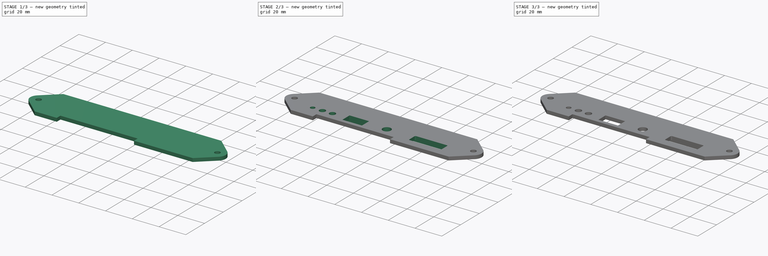
[diagram: build sequence overview — one tinted view per stage of 3, left to right]
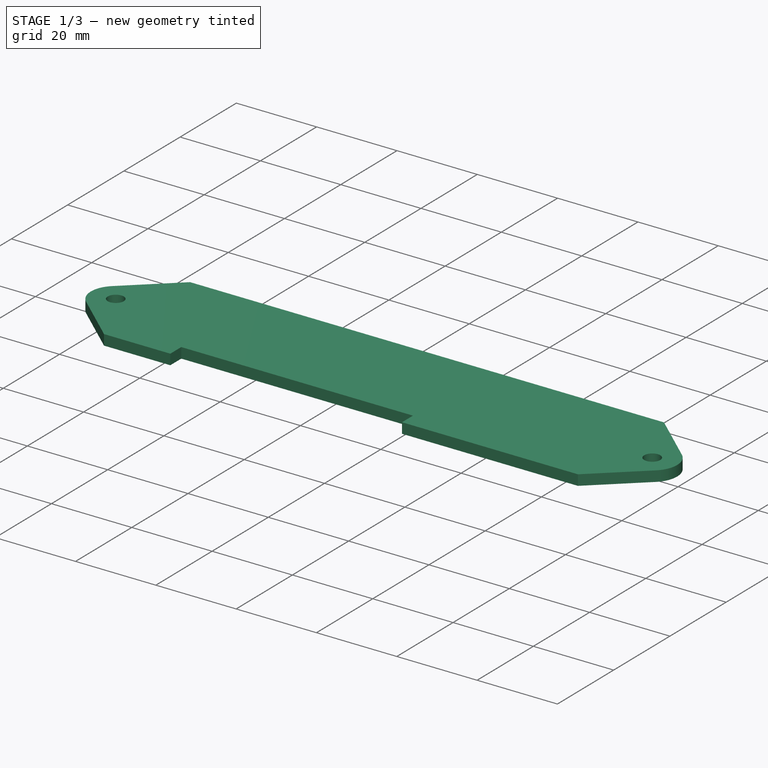
[diagram: stage 1 of 3 — iso view after this stage's code; geometry added in this stage tinted green]
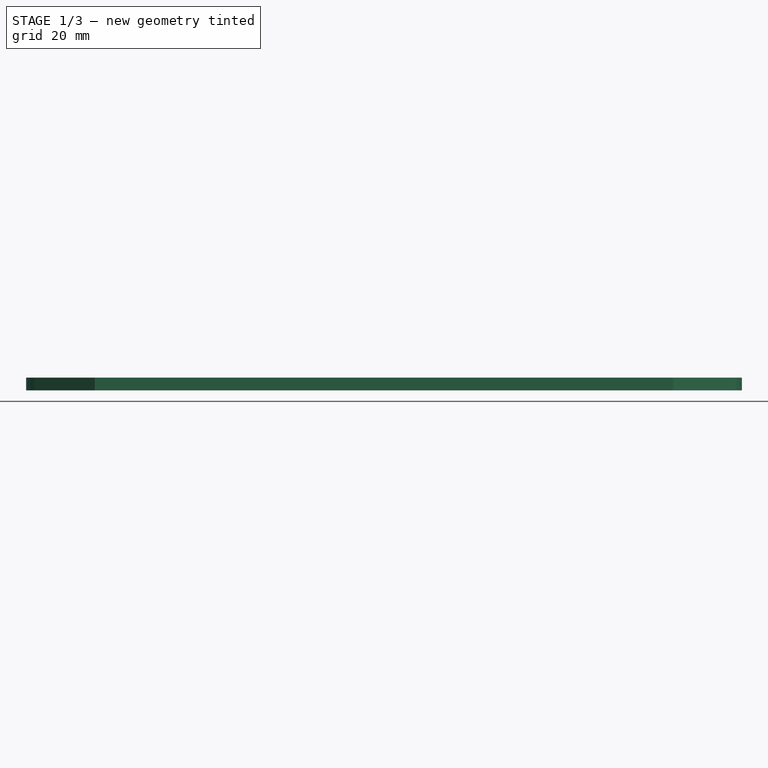
[diagram: stage 1 of 3 — front view after this stage's code; geometry added in this stage tinted green]
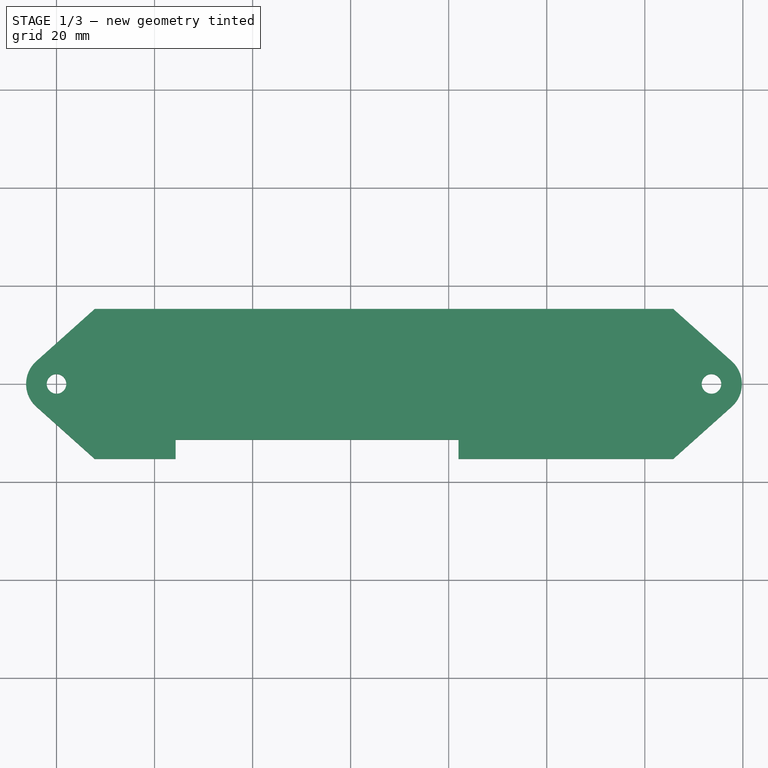
[diagram: stage 1 of 3 — top view after this stage's code; geometry added in this stage tinted green]
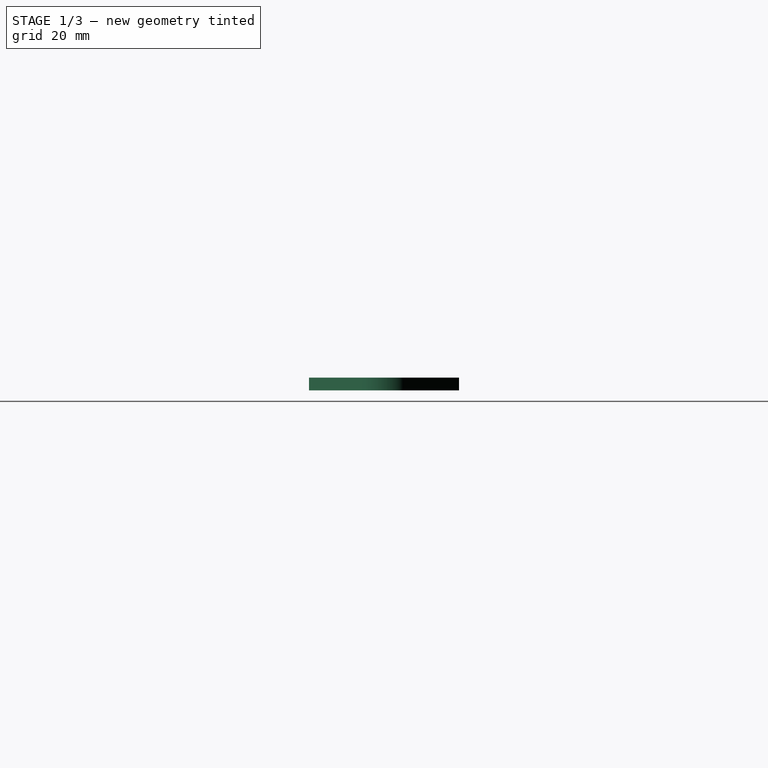
[diagram: stage 1 of 3 — right view after this stage's code; geometry added in this stage tinted green]
FCSTD DOCUMENT  (FreeCAD 0.20R29603 (Git))
Label: gotek-face
License: All rights reserved
LicenseURL: http://en.wikipedia.org/wiki/All_rights_reserved
objects: Sketcher::SketchObject×7, PartDesign::Pocket×5, PartDesign::Pad×2, PartDesign::Body×1
note: 22 computed .brp shape members not serialized (recipe doc carries the construction recipe); baked Part::Feature solids carry a one-line shape summary decoded from their .brp

FEATURE [Sketcher::SketchObject] Sketch
  FullyConstrained = true
  MapMode = 5
  Support = -> [XY_Plane]
  sketch-geometry (12):
    g0: ArcOfCircle CenterX=0 CenterY=0 CenterZ=0 NormalX=0 NormalY=0 NormalZ=1 AngleXU=0 Radius=6.2 StartAngle=2.30077 EndAngle=3.98241
    g1: ArcOfCircle CenterX=133.6 CenterY=0 CenterZ=0 NormalX=0 NormalY=0 NormalZ=1 AngleXU=0 Radius=6.2 StartAngle=5.44236 EndAngle=7.12401
    g2: LineSegment StartX=-4.13447 StartY=4.62019 StartZ=0 EndX=7.8 EndY=15.3 EndZ=0
    g3: LineSegment StartX=7.8 StartY=15.3 StartZ=0 EndX=125.8 EndY=15.3 EndZ=0
    g4: LineSegment StartX=125.8 StartY=15.3 StartZ=0 EndX=137.734 EndY=4.62019 EndZ=0
    g5: LineSegment StartX=-4.13447 StartY=-4.62019 StartZ=0 EndX=7.8 EndY=-15.3 EndZ=0
    g6: LineSegment StartX=7.8 StartY=-15.3 StartZ=0 EndX=125.8 EndY=-15.3 EndZ=0
    g7: LineSegment StartX=125.8 StartY=-15.3 StartZ=0 EndX=137.734 EndY=-4.62019 EndZ=0
    g8: GeomPoint X=-6.2 Y=0 Z=0
    g9: GeomPoint X=139.8 Y=0 Z=0
    g10: Circle CenterX=0 CenterY=0 CenterZ=0 NormalX=0 NormalY=0 NormalZ=1 AngleXU=0 Radius=2
    g11: Circle CenterX=133.6 CenterY=0 CenterZ=0 NormalX=0 NormalY=0 NormalZ=1 AngleXU=0 Radius=2
  constraints (29):
    c: Coincident(g0,g-1)
    c: PointOnObject(g1,g-1)
    c: Coincident(g3,g2)
    c: Horizontal(g3)
    c: Coincident(g4,g3)
    c: Coincident(g6,g5)
    c: Horizontal(g6)
    c: Coincident(g7,g6)
    c: Equal(g0,g1)
    c: Tangent(g1,g7) = -1.5708
    c: Tangent(g0,g2) = 1.5708
    c: Tangent(g0,g5) = -1.5708
    c: Tangent(g1,g4) = 1.5708
    c: Equal(g4,g7)
    c: Equal(g7,g5)
    c: Equal(g5,g2)
    c: Equal(g3,g6)
    c: PointOnObject(g8,g-1)
    c: PointOnObject(g9,g-1)
    c: PointOnObject(g9,g1)
    c: PointOnObject(g8,g0)
    c: Radius(g0) = 6.2
    c: DistanceY(g5,g2) = 30.6
    c: DistanceX(g8,g9) = 146
    c: DistanceX(g3,g3) = 118
    c: Coincident(g10,g0)
    c: Coincident(g11,g1)
    c: Equal(g11,g10)
    c: Radius(g11) = 2
FEATURE [PartDesign::Pad] Pad
  Direction = (0,0,1)
  Length = 2.6
  Length2 = 10
  Profile = -> Sketch
  ReferenceAxis = -> Sketch [N_Axis]
  Type = 0
FEATURE [Sketcher::SketchObject] Sketch001
  ExternalGeometry = -> [Pad]
  FullyConstrained = true
  MapMode = 5
  Placement = pos=(0,0,2.6) rot=(0,0,1;0rad)
  Support = -> [Pad]
  sketch-geometry (6):
    g0: GeomPoint X=-6.2 Y=0 Z=0
    g1: LineSegment StartX=24.3 StartY=-15.3 StartZ=0 EndX=82 EndY=-15.3 EndZ=0
    g2: LineSegment StartX=82 StartY=-15.3 StartZ=0 EndX=82 EndY=-11.4 EndZ=0
    g3: LineSegment StartX=82 StartY=-11.4 StartZ=0 EndX=24.3 EndY=-11.4 EndZ=0
    g4: LineSegment StartX=24.3 StartY=-11.4 StartZ=0 EndX=24.3 EndY=-15.3 EndZ=0
    g5: GeomPoint X=139.8 Y=0 Z=0
  constraints (16):
    c: PointOnObject(g0,g-1)
    c: PointOnObject(g0,g-3)
    c: Coincident(g1,g2)
    c: Coincident(g2,g3)
    c: Coincident(g3,g4)
    c: Coincident(g4,g1)
    c: Horizontal(g1)
    c: Horizontal(g3)
    c: Vertical(g2)
    c: Vertical(g4)
    c: PointOnObject(g1,g-4)
    c: DistanceX(g0,g3) = 30.5
    c: PointOnObject(g5,g-1)
    c: DistanceX(g2,g5) = 57.8
    c: PointOnObject(g5,g-5)
    c: DistanceY(g4,g4) = 3.9
FEATURE [PartDesign::Pocket] Pocket
  BaseFeature = -> Pad
  Direction = (0,0,-1)
  Length = 5
  Length2 = 5
  Profile = -> Sketch001
  ReferenceAxis = -> Sketch001 [N_Axis]
  Type = 0
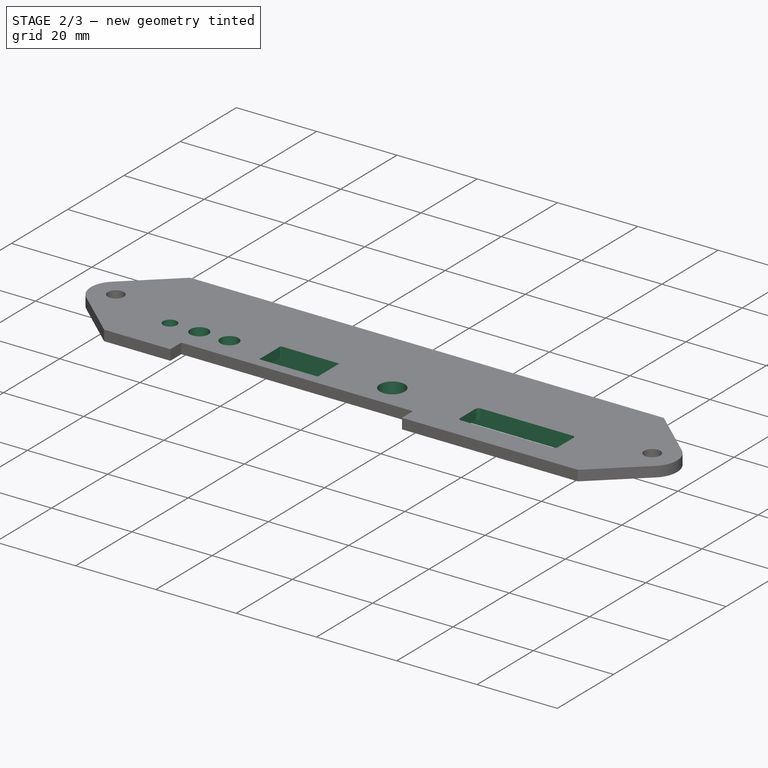
[diagram: stage 2 of 3 — iso view after this stage's code; geometry added in this stage tinted green]
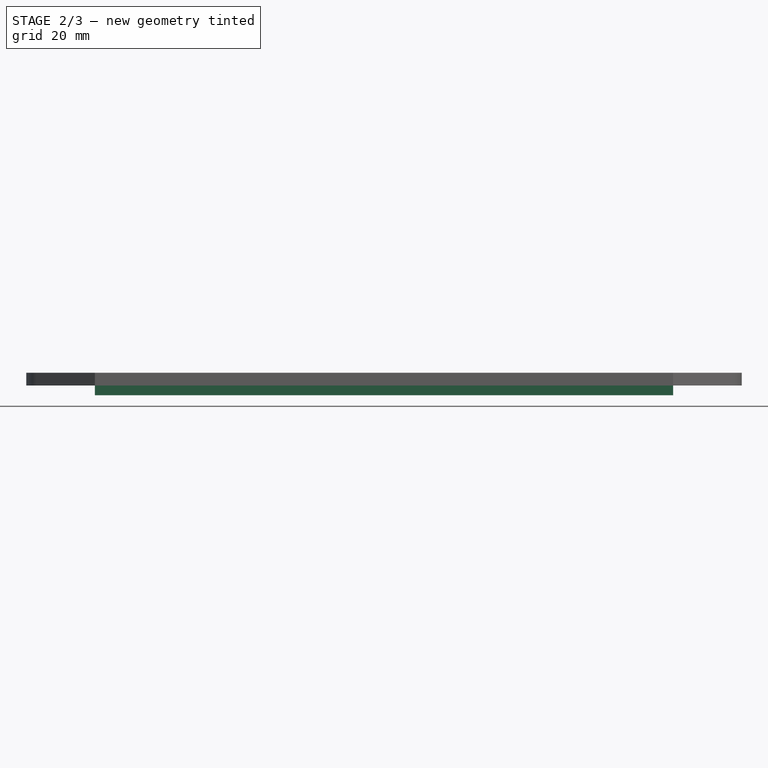
[diagram: stage 2 of 3 — front view after this stage's code; geometry added in this stage tinted green]
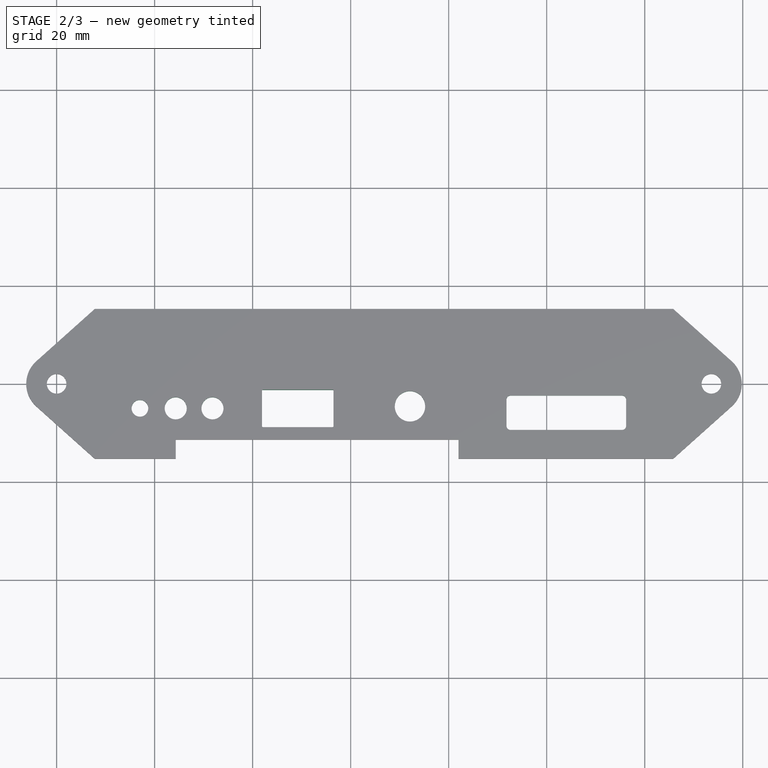
[diagram: stage 2 of 3 — top view after this stage's code; geometry added in this stage tinted green]
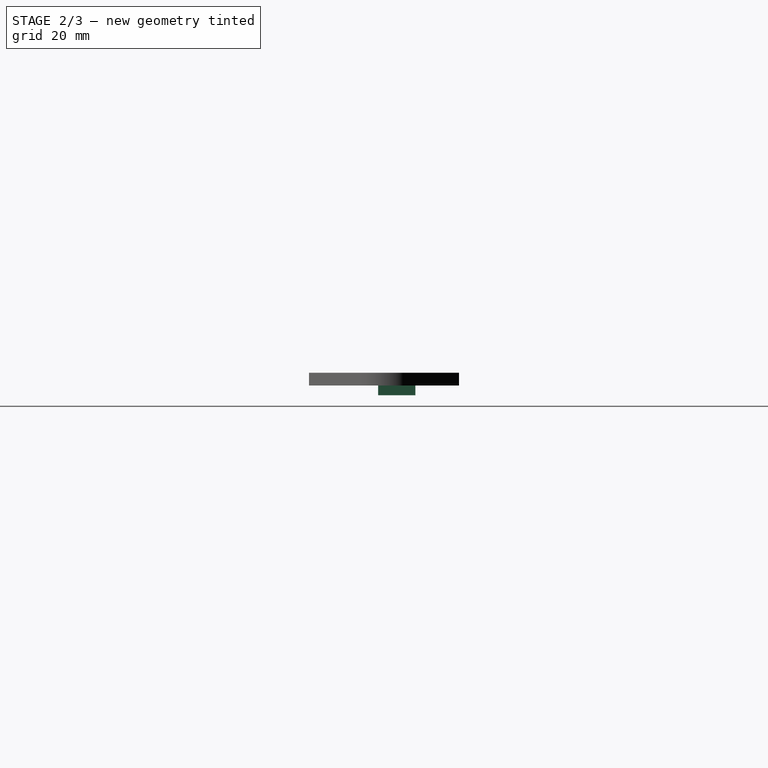
[diagram: stage 2 of 3 — right view after this stage's code; geometry added in this stage tinted green]
FEATURE [Sketcher::SketchObject] Sketch002
  ExternalGeometry = -> [Pocket]
  FullyConstrained = true
  MapMode = 5
  Placement = pos=(0,0,0) rot=(1,0,0;3.14159rad)
  Support = -> [Pocket]
  sketch-geometry (4):
    g0: LineSegment StartX=9 StartY=0 StartZ=0 EndX=124.6 EndY=0 EndZ=0
    g1: LineSegment StartX=124.6 StartY=0 StartZ=0 EndX=124.6 EndY=-5.2 EndZ=0
    g2: LineSegment StartX=124.6 StartY=-5.2 StartZ=0 EndX=9 EndY=-5.2 EndZ=0
    g3: LineSegment StartX=9 StartY=-5.2 StartZ=0 EndX=9 EndY=0 EndZ=0
  constraints (12):
    c: Coincident(g0,g1)
    c: Coincident(g1,g2)
    c: Coincident(g2,g3)
    c: Coincident(g3,g0)
    c: Horizontal(g0)
    c: Horizontal(g2)
    c: Vertical(g1)
    c: Vertical(g3)
    c: PointOnObject(g0,g-1)
    c: DistanceX(g0,g-3) = 9
    c: DistanceX(g-1,g0) = 9
    c: DistanceY(g3,g3) = 5.2
FEATURE [PartDesign::Pocket] Pocket001
  BaseFeature = -> Pocket
  Direction = (0,0,1)
  Length = 0.2
  Length2 = 5
  Profile = -> Sketch002
  ReferenceAxis = -> Sketch002 [N_Axis]
  Type = 0
FEATURE [Sketcher::SketchObject] Sketch003
  ExternalGeometry = -> [Pocket001]
  FullyConstrained = true
  MapMode = 5
  Placement = pos=(0,0,0) rot=(1,0,0;3.14159rad)
  Support = -> [Pocket001]
  sketch-geometry (10):
    g0: LineSegment StartX=9 StartY=0 StartZ=0 EndX=124.6 EndY=0 EndZ=0
    g1: LineSegment StartX=124.6 StartY=0 StartZ=0 EndX=124.6 EndY=-5.2 EndZ=0
    g2: LineSegment StartX=124.6 StartY=-5.2 StartZ=0 EndX=9 EndY=-5.2 EndZ=0
    g3: LineSegment StartX=9 StartY=-5.2 StartZ=0 EndX=9 EndY=0 EndZ=0
    g4: LineSegment StartX=7.8 StartY=1.2 StartZ=0 EndX=125.8 EndY=1.2 EndZ=0
    g5: LineSegment StartX=125.8 StartY=1.2 StartZ=0 EndX=125.8 EndY=-6.4 EndZ=0
    g6: LineSegment StartX=125.8 StartY=-6.4 StartZ=0 EndX=7.8 EndY=-6.4 EndZ=0
    g7: LineSegment StartX=7.8 StartY=-6.4 StartZ=0 EndX=7.8 EndY=1.2 EndZ=0
    g8: Circle CenterX=9 CenterY=0 CenterZ=0 NormalX=0 NormalY=0 NormalZ=1 AngleXU=0 Radius=1.2
    g9: Circle CenterX=124.6 CenterY=-5.2 CenterZ=0 NormalX=0 NormalY=0 NormalZ=1 AngleXU=0 Radius=1.2
  constraints (26):
    c: Coincident(g0,g1)
    c: Coincident(g1,g2)
    c: Coincident(g2,g3)
    c: Coincident(g3,g0)
    c: Horizontal(g0)
    c: Horizontal(g2)
    c: Vertical(g1)
    c: Vertical(g3)
    c: Coincident(g0,g-3)
    c: Coincident(g1,g-4)
    c: Coincident(g4,g5)
    c: Coincident(g5,g6)
    c: Coincident(g6,g7)
    c: Coincident(g7,g4)
    c: Horizontal(g4)
    c: Horizontal(g6)
    c: Vertical(g5)
    c: Vertical(g7)
    c: Coincident(g8,g0)
    c: Tangent(g8,g4)
    c: Coincident(g9,g1)
    c: Tangent(g9,g6)
    c: Tangent(g9,g5)
    c: Tangent(g8,g7)
    c: Equal(g8,g9)
    c: DistanceY(g0,g4) = 1.2
FEATURE [PartDesign::Pad] Pad001
  BaseFeature = -> Pocket001
  Direction = (0,0,-1)
  Length = 2
  Length2 = 10
  Profile = -> Sketch003
  ReferenceAxis = -> Sketch003 [N_Axis]
  Type = 0
FEATURE [Sketcher::SketchObject] Sketch004
  ExternalGeometry = -> [Pad001]
  FullyConstrained = true
  MapMode = 5
  Placement = pos=(0,0,2.6) rot=(0,0,1;0rad)
  Support = -> [Pad001]
  sketch-geometry (25):
    g0: GeomPoint X=9.3 Y=0 Z=0
    g1: LineSegment StartX=17 StartY=-5 StartZ=0 EndX=31.8 EndY=-5 EndZ=0
    g2: Circle CenterX=24.3 CenterY=-5 CenterZ=0 NormalX=0 NormalY=0 NormalZ=1 AngleXU=0 Radius=2.25
    g3: Circle CenterX=31.8 CenterY=-5 CenterZ=0 NormalX=0 NormalY=0 NormalZ=1 AngleXU=0 Radius=2.25
    g4: Circle CenterX=17 CenterY=-5 CenterZ=0 NormalX=0 NormalY=0 NormalZ=1 AngleXU=0 Radius=1.7
    g5: LineSegment StartX=42.1 StartY=-1.2 StartZ=0 EndX=56.3 EndY=-1.2 EndZ=0
    g6: LineSegment StartX=56.5 StartY=-1.4 StartZ=0 EndX=56.5 EndY=-8.63 EndZ=0
    g7: LineSegment StartX=56.3 StartY=-8.83 StartZ=0 EndX=42.1 EndY=-8.83 EndZ=0
    g8: LineSegment StartX=41.9 StartY=-8.63 StartZ=0 EndX=41.9 EndY=-1.4 EndZ=0
    g9: ArcOfCircle CenterX=42.1 CenterY=-1.4 CenterZ=0 NormalX=0 NormalY=0 NormalZ=1 AngleXU=0 Radius=0.2 StartAngle=1.5708 EndAngle=3.14159
    g10: ArcOfCircle CenterX=42.1 CenterY=-8.63 CenterZ=0 NormalX=0 NormalY=0 NormalZ=1 AngleXU=0 Radius=0.2 StartAngle=3.14159 EndAngle=4.71239
    g11: ArcOfCircle CenterX=56.3 CenterY=-8.63 CenterZ=0 NormalX=0 NormalY=0 NormalZ=1 AngleXU=0 Radius=0.2 StartAngle=4.71239 EndAngle=6.28319
    g12: ArcOfCircle CenterX=56.3 CenterY=-1.4 CenterZ=0 NormalX=0 NormalY=0 NormalZ=1 AngleXU=0 Radius=0.2 StartAngle=0 EndAngle=1.5708
    g13: LineSegment StartX=92.6 StartY=-2.4 StartZ=0 EndX=115.4 EndY=-2.4 EndZ=0
    g14: LineSegment StartX=116.2 StartY=-3.2 StartZ=0 EndX=116.2 EndY=-8.6 EndZ=0
    g15: LineSegment StartX=115.4 StartY=-9.4 StartZ=0 EndX=92.6 EndY=-9.4 EndZ=0
    g16: LineSegment StartX=91.8 StartY=-8.6 StartZ=0 EndX=91.8 EndY=-3.2 EndZ=0
    g17: ArcOfCircle CenterX=92.6 CenterY=-3.2 CenterZ=0 NormalX=0 NormalY=0 NormalZ=1 AngleXU=0 Radius=0.8 StartAngle=1.5708 EndAngle=3.14159
    g18: ArcOfCircle CenterX=92.6 CenterY=-8.6 CenterZ=0 NormalX=0 NormalY=0 NormalZ=1 AngleXU=0 Radius=0.8 StartAngle=3.14159 EndAngle=4.71239
    g19: ArcOfCircle CenterX=115.4 CenterY=-3.2 CenterZ=0 NormalX=0 NormalY=0 NormalZ=1 AngleXU=0 Radius=0.8 StartAngle=0 EndAngle=1.5708
    g20: ArcOfCircle CenterX=115.4 CenterY=-8.6 CenterZ=0 NormalX=0 NormalY=0 NormalZ=1 AngleXU=0 Radius=0.8 StartAngle=4.71239 EndAngle=6.28319
    g21: LineSegment StartX=72.1 StartY=0 StartZ=0 EndX=72.1 EndY=-4.6 EndZ=0
    g22: Circle CenterX=72.1 CenterY=-4.6 CenterZ=0 NormalX=0 NormalY=0 NormalZ=1 AngleXU=0 Radius=3.1
    g23: LineSegment StartX=72.1 StartY=-4.6 StartZ=0 EndX=56.5 EndY=-4.6 EndZ=0
    g24: GeomPoint X=72.1 Y=-7.7 Z=0
  constraints (64):
    c: PointOnObject(g0,g-1)
    c: DistanceX(g-1,g0) = 9.3
    c: Horizontal(g1)
    c: PointOnObject(g2,g1)
    c: Coincident(g3,g1)
    c: Coincident(g4,g1)
    c: Equal(g2,g3)
    c: Radius(g3) = 2.25
    c: Radius(g4) = 1.7
    c: DistanceX(g0,g4) = 7.7
    c: DistanceY(g4,g0) = 5
    c: DistanceX(g0,g2) = 15
    c: DistanceX(g2,g3) = 7.5
    c: Horizontal(g5)
    c: Horizontal(g7)
    c: Vertical(g6)
    c: Vertical(g8)
    c: Tangent(g5,g9) = 1.5708
    c: Tangent(g8,g9) = 1.5708
    c: Tangent(g8,g10) = 1.5708
    c: Tangent(g7,g10) = 1.5708
    c: Tangent(g7,g11) = 1.5708
    c: Tangent(g6,g11) = 1.5708
    c: Tangent(g5,g12) = 1.5708
    c: Tangent(g6,g12) = 1.5708
    c: Equal(g9,g10)
    c: Equal(g10,g11)
    c: Equal(g11,g12)
    c: Radius(g12) = 0.2
    c: DistanceX(g0,g6) = 47.2
    c: DistanceX(g8,g6) = 14.6
    c: DistanceY(g5,g0) = 1.2
    c: Horizontal(g13)
    c: Horizontal(g15)
    c: Vertical(g14)
    c: Vertical(g16)
    c: Tangent(g16,g17) = 1.5708
    c: Tangent(g13,g17) = 1.5708
    c: Tangent(g16,g18) = 1.5708
    c: Tangent(g15,g18) = 1.5708
    c: Tangent(g13,g19) = 1.5708
    c: Tangent(g14,g19) = 1.5708
    c: Tangent(g15,g20) = 1.5708
    c: Tangent(g14,g20) = 1.5708
    c: Equal(g17,g18)
    c: Equal(g18,g20)
    c: Equal(g20,g19)
    c: Radius(g19) = 0.8
    c: DistanceY(g15,g13) = 7
    c: DistanceX(g16,g14) = 24.4
    c: DistanceX(g0,g16) = 82.5
    c: DistanceY(g13,g0) = 2.4
    c: PointOnObject(g21,g-1)
    c: Vertical(g21)
    c: Coincident(g22,g21)
    c: Radius(g22) = 3.1
    c: Coincident(g23,g22)
    c: PointOnObject(g23,g6)
    c: Horizontal(g23)
    c: PointOnObject(g24,g22)
    c: PointOnObject(g24,g21)
    c: DistanceY(g-3,g24) = 3.7
    c: DistanceY(g7,g5) = 7.63
    c: DistanceX(g23,g23) = 15.6
FEATURE [PartDesign::Pocket] Pocket002
  BaseFeature = -> Pad001
  Direction = (0,0,-1)
  Length = 5
  Length2 = 5
  Profile = -> Sketch004
  ReferenceAxis = -> Sketch004 [N_Axis]
  Type = 0
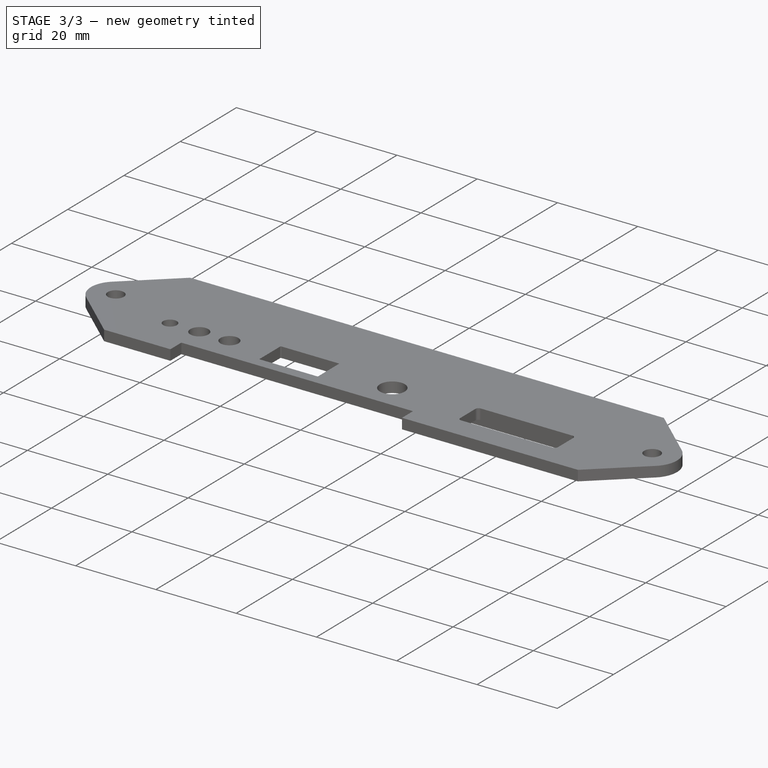
[diagram: stage 3 of 3 — iso view after this stage's code; geometry added in this stage tinted green]
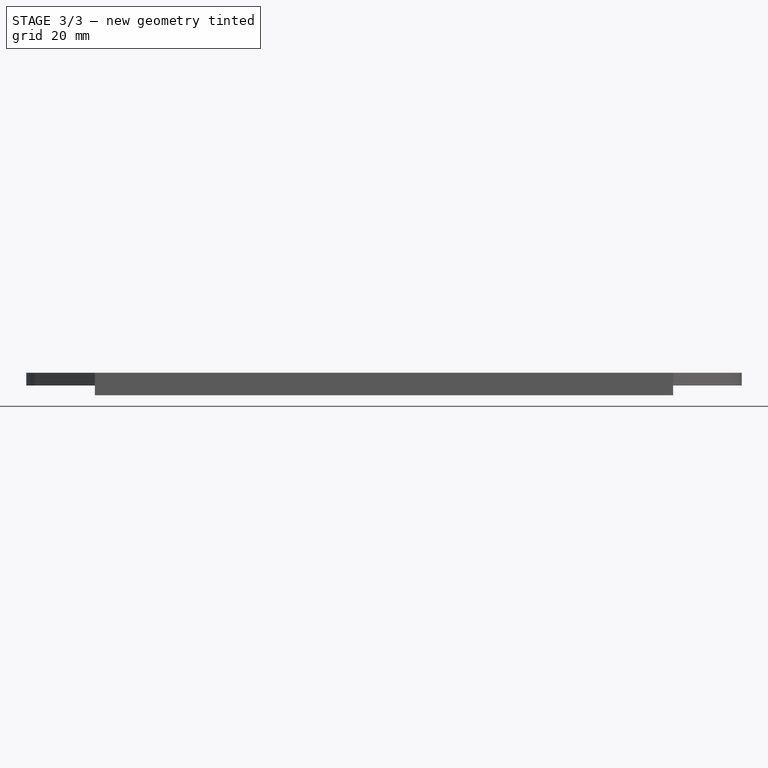
[diagram: stage 3 of 3 — front view after this stage's code; geometry added in this stage tinted green]
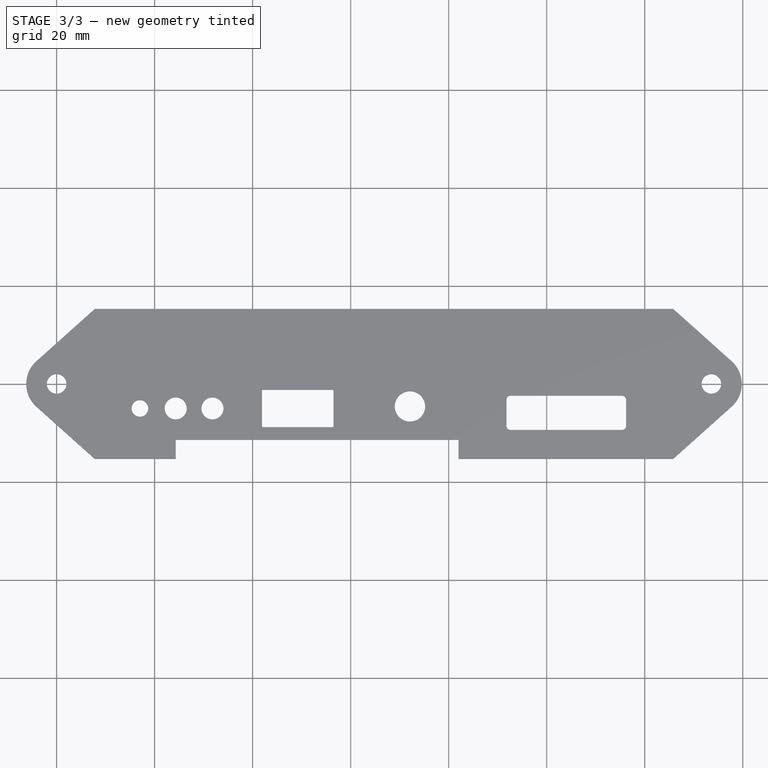
[diagram: stage 3 of 3 — top view after this stage's code; geometry added in this stage tinted green]
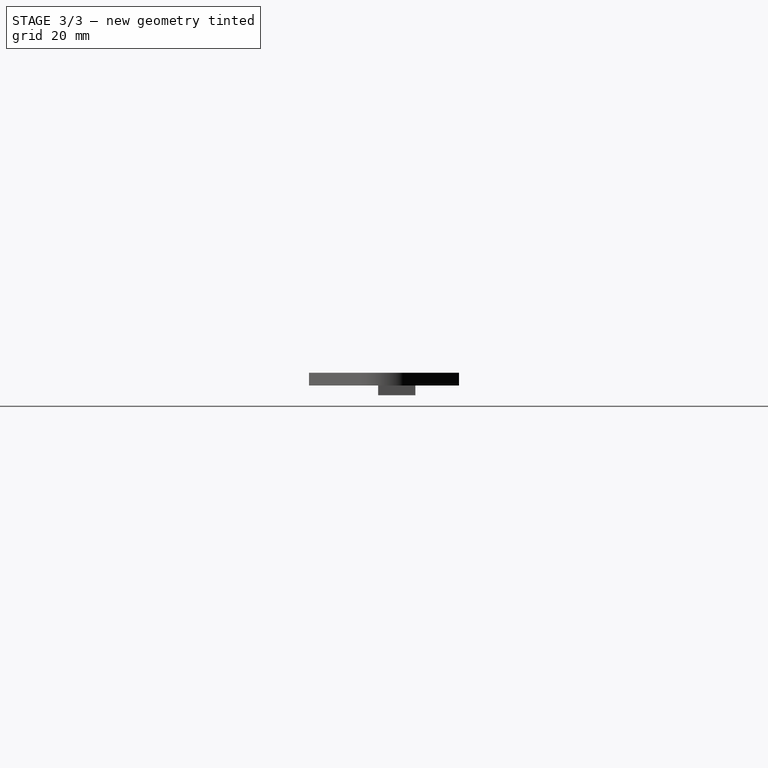
[diagram: stage 3 of 3 — right view after this stage's code; geometry added in this stage tinted green]
FEATURE [Sketcher::SketchObject] Sketch005
  ExternalGeometry = -> [Pocket002]
  FullyConstrained = true
  MapMode = 5
  Placement = pos=(0,0,-2) rot=(1,0,0;3.14159rad)
  Support = -> [Pocket002]
  sketch-geometry (4):
    g0: LineSegment StartX=16.8 StartY=1.2 StartZ=0 EndX=58.8 EndY=1.2 EndZ=0
    g1: LineSegment StartX=58.8 StartY=1.2 StartZ=0 EndX=58.8 EndY=0 EndZ=0
    g2: LineSegment StartX=58.8 StartY=0 StartZ=0 EndX=16.8 EndY=0 EndZ=0
    g3: LineSegment StartX=16.8 StartY=0 StartZ=0 EndX=16.8 EndY=1.2 EndZ=0
  constraints (12):
    c: Coincident(g0,g1)
    c: Coincident(g1,g2)
    c: Coincident(g2,g3)
    c: Coincident(g3,g0)
    c: Horizontal(g0)
    c: Horizontal(g2)
    c: Vertical(g1)
    c: Vertical(g3)
    c: PointOnObject(g0,g-4)
    c: PointOnObject(g1,g-1)
    c: DistanceX(g-4,g0) = 9
    c: DistanceX(g-4,g0) = 51
FEATURE [PartDesign::Pocket] Pocket003
  BaseFeature = -> Pocket002
  Direction = (0,0,1)
  Length = 2
  Length2 = 5
  Profile = -> Sketch005
  ReferenceAxis = -> Sketch005 [N_Axis]
  Type = 0
FEATURE [Sketcher::SketchObject] Sketch006
  ExternalGeometry = -> [Pocket003]
  FullyConstrained = true
  MapMode = 5
  Placement = pos=(0,0,-2) rot=(1,0,0;3.14159rad)
  Support = -> [Pocket003]
  sketch-geometry (5):
    g0: LineSegment StartX=64.6 StartY=-2.9 StartZ=0 EndX=64.6 EndY=12.1 EndZ=0
    g1: LineSegment StartX=64.6 StartY=12.1 StartZ=0 EndX=79.6 EndY=12.1 EndZ=0
    g2: LineSegment StartX=79.6 StartY=12.1 StartZ=0 EndX=79.6 EndY=-2.9 EndZ=0
    g3: LineSegment StartX=79.6 StartY=-2.9 StartZ=0 EndX=64.6 EndY=-2.9 EndZ=0
    g4: GeomPoint X=72.1 Y=4.6 Z=0
  constraints (12):
    c: Coincident(g0,g1)
    c: Coincident(g1,g2)
    c: Coincident(g2,g3)
    c: Coincident(g3,g0)
    c: Horizontal(g1)
    c: Horizontal(g3)
    c: Vertical(g0)
    c: Vertical(g2)
    c: Symmetric(g1,g0,g4)
    c: Coincident(g4,g-3)
    c: Equal(g2,g1)
    c: DistanceY(g0,g0) = 15
FEATURE [PartDesign::Pocket] Pocket004
  BaseFeature = -> Pocket003
  Direction = (0,0,1)
  Length = 0
  Length2 = 5
  Profile = -> Sketch006
  ReferenceAxis = -> Sketch006 [N_Axis]
  Type = 3
  UpToFace = -> Pocket003 [Face4]
FEATURE [PartDesign::Body] Body
  Group = -> [Sketch,Pad,Sketch001,Pocket,Sketch002,Pocket001,Sketch003,Pad001,Sketch004,Pocket002,Sketch005,Pocket003,Sketch006,Pocket004]
  Origin = -> Origin
  Tip = -> Pocket004
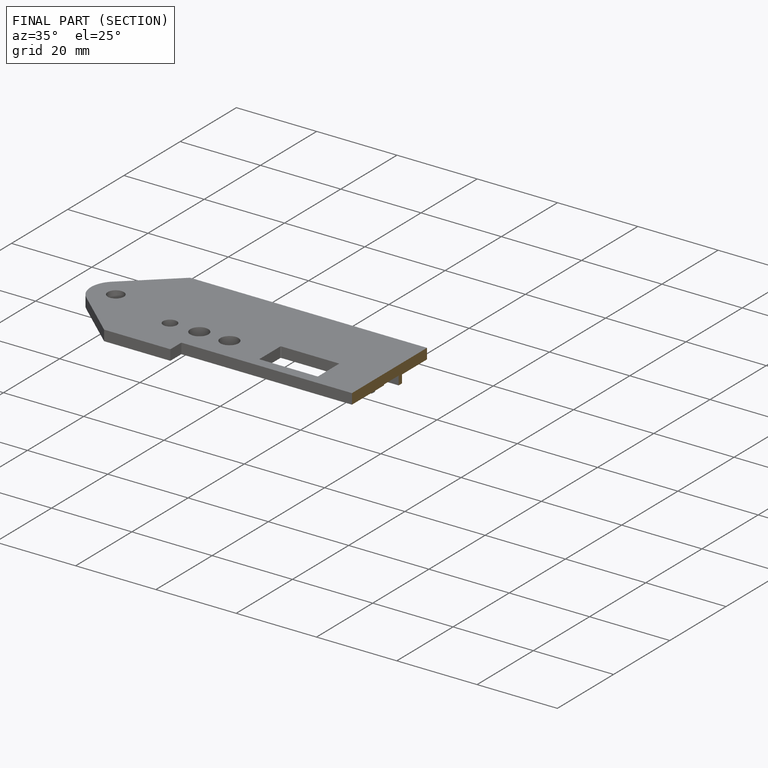
[diagram: finished part — half-section view (interior)]
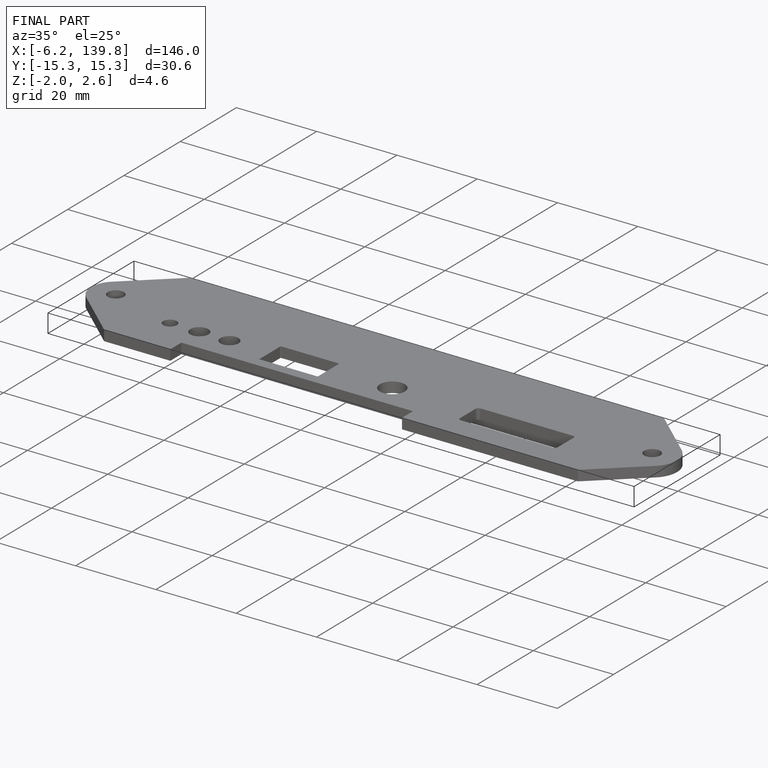
[diagram: finished part — iso view with bounding-box wireframe]
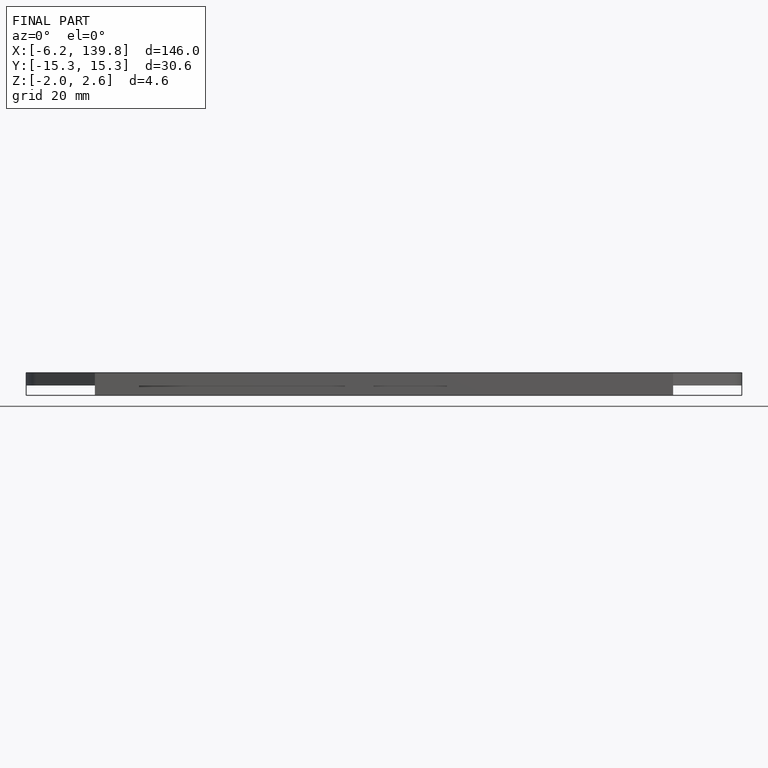
[diagram: finished part — front view with bounding-box wireframe]
